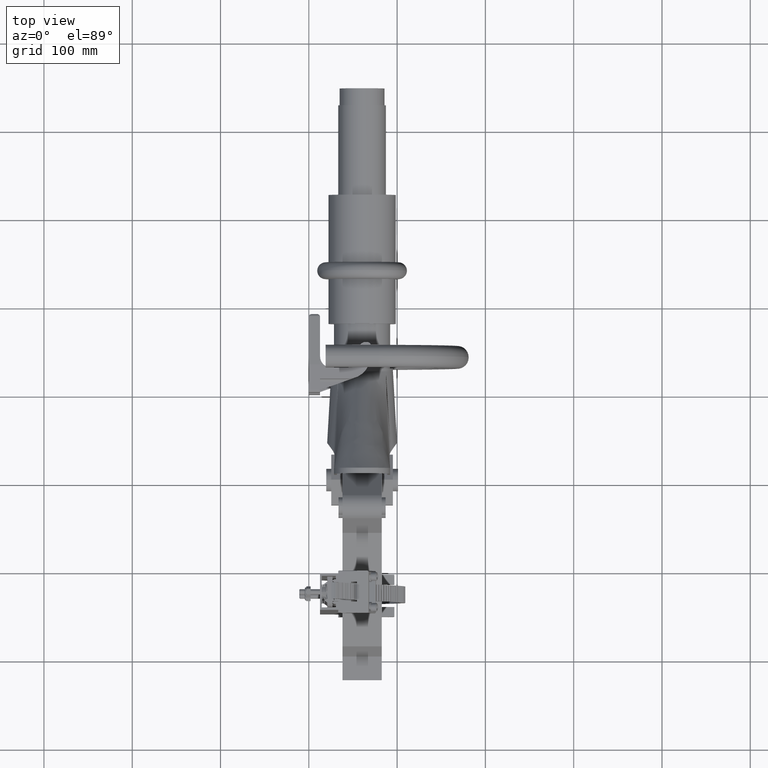
[diagram: clean part render]
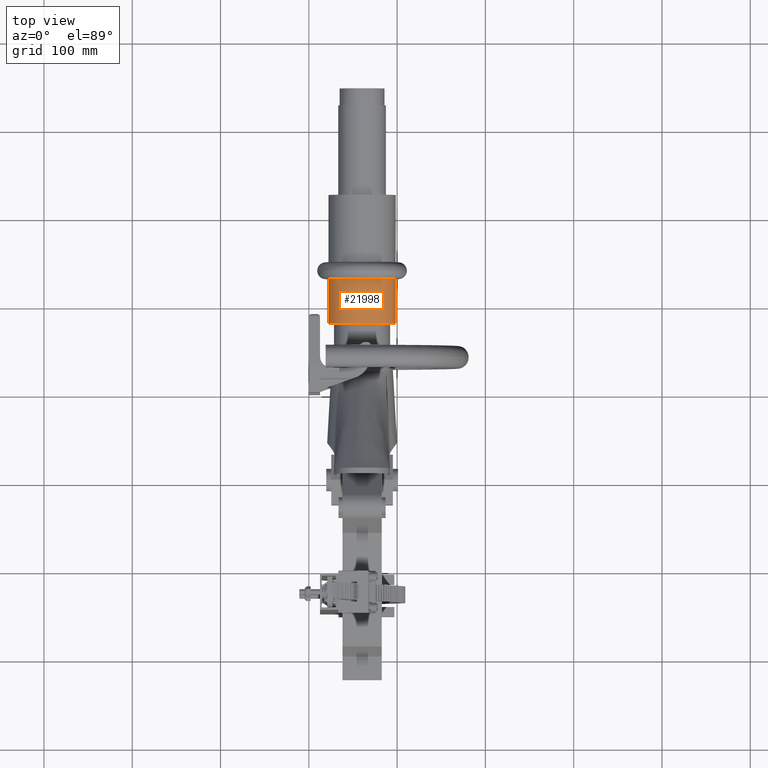
[diagram: same view with one face highlighted and labeled with its STEP entity id]
A machine part, top view. The second image highlights one B-rep face of the part: STEP entity #21998.
In plain terms, the highlighted cylindrical surface (edge-blend (fillet) strip) has radius 38.1 mm, axis along (0, 1, -0).
Its self-contained STEP definition (entity closure, byte-faithful):
#2671 = AXIS2_PLACEMENT_3D ( 'NONE', #40150, #40145, #40148 ) ;
#7885 = ORIENTED_EDGE ( 'NONE', *, *, #27016, .F. ) ;
#7886 = ORIENTED_EDGE ( 'NONE', *, *, #27013, .T. ) ;
#7887 = ORIENTED_EDGE ( 'NONE', *, *, #26999, .T. ) ;
#7888 = ORIENTED_EDGE ( 'NONE', *, *, #27018, .F. ) ;
#11453 = CARTESIAN_POINT ( 'NONE',  ( 0.0000000000000000000, -10.50000000000000000, 1.500000000000000200 ) ) ;
#11503 = CARTESIAN_POINT ( 'NONE',  ( 0.0000000000000000000, -8.500000000000000000, 1.500000000000000200 ) ) ;
#11514 = CARTESIAN_POINT ( 'NONE',  ( 1.836970198721030200E-016, -10.50000000000000000, -1.500000000000000200 ) ) ;
#13127 = FACE_OUTER_BOUND ( 'NONE', #25316, .T. ) ;
#13129 = CYLINDRICAL_SURFACE ( 'NONE', #2671, 1.500000000000000200 ) ;
#16605 = VERTEX_POINT ( 'NONE', #11453 ) ;
#16655 = VERTEX_POINT ( 'NONE', #11503 ) ;
#16666 = VERTEX_POINT ( 'NONE', #11514 ) ;
#19128 = VECTOR ( 'NONE', #25671, 39.37007874015748100 ) ;
#19135 = CIRCLE ( 'NONE', #42964, 1.500000000000000200 ) ;
#19146 = VECTOR ( 'NONE', #25675, 39.37007874015748100 ) ;
#19150 = LINE ( 'NONE', #25665, #19128 ) ;
#19157 = LINE ( 'NONE', #25664, #19146 ) ;
#19158 = CIRCLE ( 'NONE', #42970, 1.500000000000000200 ) ;
#21998 = ADVANCED_FACE ( 'NONE', ( #13127 ), #13129, .T. ) ;
#25316 = EDGE_LOOP ( 'NONE', ( #7885, #7886, #7887, #7888 ) ) ;
#25654 = CARTESIAN_POINT ( 'NONE',  ( 0.0000000000000000000, -8.500000000000000000, 0.0000000000000000000 ) ) ;
#25655 = DIRECTION ( 'NONE',  ( 0.0000000000000000000, -1.000000000000000000, 0.0000000000000000000 ) ) ;
#25656 = DIRECTION ( 'NONE',  ( 0.0000000000000000000, 0.0000000000000000000, -1.000000000000000000 ) ) ;
#25664 = CARTESIAN_POINT ( 'NONE',  ( 0.0000000000000000000, -10.50000000000000000, 1.500000000000000200 ) ) ;
#25665 = CARTESIAN_POINT ( 'NONE',  ( 1.836970198721030200E-016, -10.50000000000000000, -1.500000000000000200 ) ) ;
#25670 = CARTESIAN_POINT ( 'NONE',  ( 0.0000000000000000000, -10.50000000000000000, 0.0000000000000000000 ) ) ;
#25671 = DIRECTION ( 'NONE',  ( -0.0000000000000000000, 1.000000000000000000, -0.0000000000000000000 ) ) ;
#25672 = DIRECTION ( 'NONE',  ( 0.0000000000000000000, -1.000000000000000000, 0.0000000000000000000 ) ) ;
#25673 = DIRECTION ( 'NONE',  ( 0.0000000000000000000, 0.0000000000000000000, -1.000000000000000000 ) ) ;
#25675 = DIRECTION ( 'NONE',  ( -0.0000000000000000000, 1.000000000000000000, -0.0000000000000000000 ) ) ;
#26999 = EDGE_CURVE ( 'NONE', #42228, #16655, #19135, .T. ) ;
#27013 = EDGE_CURVE ( 'NONE', #16666, #42228, #19150, .T. ) ;
#27016 = EDGE_CURVE ( 'NONE', #16666, #16605, #19158, .T. ) ;
#27018 = EDGE_CURVE ( 'NONE', #16605, #16655, #19157, .T. ) ;
#34743 = CARTESIAN_POINT ( 'NONE',  ( 1.836970198721030200E-016, -8.500000000000000000, -1.500000000000000200 ) ) ;
#40145 = DIRECTION ( 'NONE',  ( -0.0000000000000000000, 1.000000000000000000, -0.0000000000000000000 ) ) ;
#40148 = DIRECTION ( 'NONE',  ( 0.0000000000000000000, 0.0000000000000000000, 1.000000000000000000 ) ) ;
#40150 = CARTESIAN_POINT ( 'NONE',  ( 0.0000000000000000000, -10.50000000000000000, 0.0000000000000000000 ) ) ;
#42228 = VERTEX_POINT ( 'NONE', #34743 ) ;
#42964 = AXIS2_PLACEMENT_3D ( 'NONE', #25654, #25655, #25656 ) ;
#42970 = AXIS2_PLACEMENT_3D ( 'NONE', #25670, #25672, #25673 ) ;